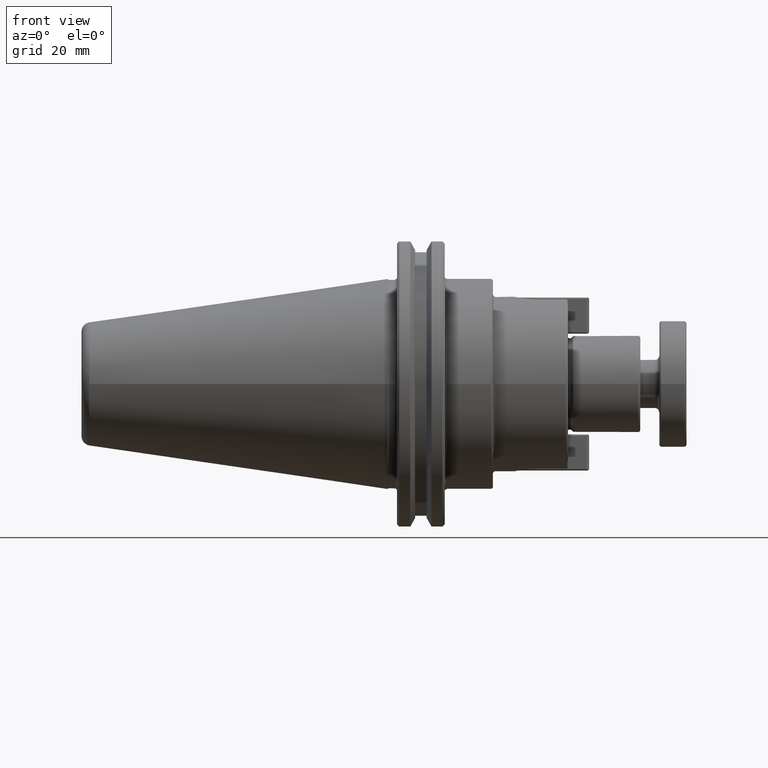
[diagram: clean part render]
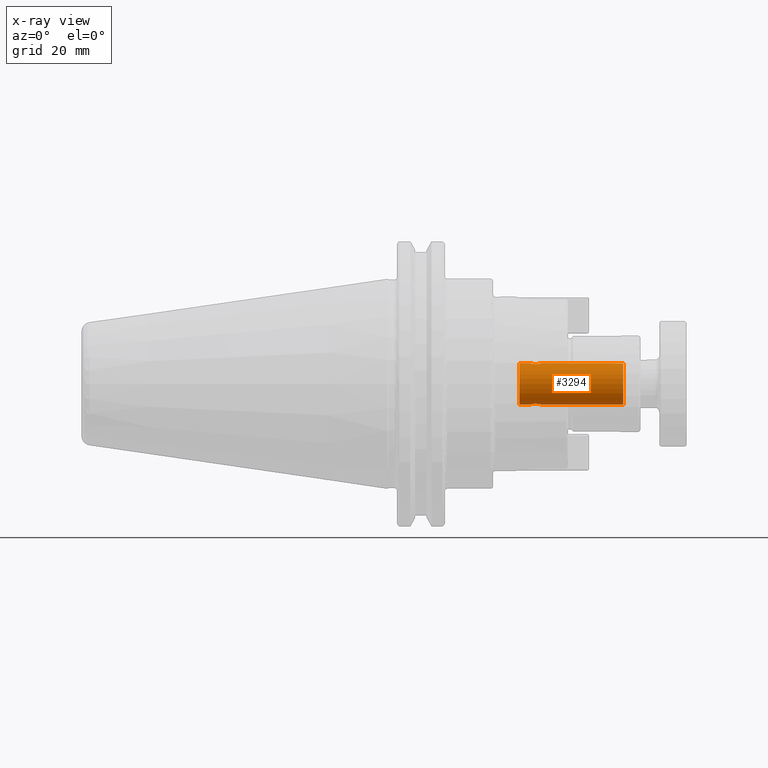
[diagram: x-ray — body ghosted, one internal face saturated and labeled with its STEP entity id]
A machine part, front view, then the same camera in x-ray: the body is ghosted and one INTERNAL B-rep face — a face not visible from any outside direction — is saturated and labeled: STEP entity #3294.
In plain terms, the highlighted cylindrical surface (bore or boss wall) has radius 6.9175 mm, axis along (1, 0, 0).
Its self-contained STEP definition (entity closure, byte-faithful):
#150=B_SPLINE_CURVE_WITH_KNOTS('',3,(#4994,#4995,#4996,#4997,#4998,#4999,
#5000,#5001,#5002,#5003,#5004,#5005,#5006,#5007,#5008,#5009,#5010,#5011,
#5012,#5013,#5014,#5015,#5016,#5017,#5018,#5019),.UNSPECIFIED.,.F.,.F.,
(4,2,2,2,2,2,2,2,2,2,2,2,4),(0.,0.0783920678561666,0.156784135712333,0.235153235671694,
0.313522335631055,0.391891435590416,0.470260535549777,0.548652603405943,
0.62704467126211,0.705436739118277,0.783828806974443,0.862197906933804,
0.940567006893165),.UNSPECIFIED.);
#151=B_SPLINE_CURVE_WITH_KNOTS('',3,(#5020,#5021,#5022,#5023,#5024,#5025,
#5026,#5027,#5028,#5029),.UNSPECIFIED.,.F.,.F.,(4,2,2,2,4),(0.940567006893165,
1.01893610685253,1.09730520681189,1.17569727466805,1.25408934252422),
 .UNSPECIFIED.);
#157=B_SPLINE_CURVE_WITH_KNOTS('',3,(#5169,#5170,#5171,#5172,#5173,#5174,
#5175,#5176,#5177,#5178,#5179,#5180,#5181,#5182,#5183,#5184,#5185,#5186,
#5187,#5188,#5189,#5190,#5191,#5192,#5193,#5194),.UNSPECIFIED.,.F.,.F.,
(4,2,2,2,2,2,2,2,2,2,2,2,4),(0.,0.0783920678561666,0.156784135712333,0.235153235671694,
0.313522335631055,0.391891435590416,0.470260535549777,0.548652603405943,
0.62704467126211,0.705436739118277,0.783828806974443,0.862197906933804,
0.940567006893165),.UNSPECIFIED.);
#158=B_SPLINE_CURVE_WITH_KNOTS('',3,(#5195,#5196,#5197,#5198,#5199,#5200,
#5201,#5202,#5203,#5204),.UNSPECIFIED.,.F.,.F.,(4,2,2,2,4),(0.940567006893165,
1.01893610685253,1.09730520681189,1.17569727466805,1.25408934252422),
 .UNSPECIFIED.);
#208=FACE_BOUND('',#546,.T.);
#209=FACE_BOUND('',#547,.T.);
#349=FACE_OUTER_BOUND('',#545,.T.);
#545=EDGE_LOOP('',(#2378,#2379,#2380,#2381));
#546=EDGE_LOOP('',(#2382,#2383));
#547=EDGE_LOOP('',(#2384,#2385));
#716=CIRCLE('',#3603,0.27234252);
#771=CIRCLE('',#3697,0.27234252);
#900=LINE('',#5322,#1126);
#1126=VECTOR('',#4241,0.27234252);
#1329=VERTEX_POINT('',#4941);
#1342=VERTEX_POINT('',#4991);
#1343=VERTEX_POINT('',#4993);
#1370=VERTEX_POINT('',#5166);
#1371=VERTEX_POINT('',#5168);
#1397=VERTEX_POINT('',#5312);
#1647=EDGE_CURVE('',#1329,#1329,#716,.T.);
#1675=EDGE_CURVE('',#1343,#1342,#150,.T.);
#1676=EDGE_CURVE('',#1342,#1343,#151,.T.);
#1712=EDGE_CURVE('',#1371,#1370,#157,.T.);
#1713=EDGE_CURVE('',#1370,#1371,#158,.T.);
#1756=EDGE_CURVE('',#1397,#1397,#771,.T.);
#1760=EDGE_CURVE('',#1397,#1329,#900,.T.);
#2378=ORIENTED_EDGE('',*,*,#1756,.T.);
#2379=ORIENTED_EDGE('',*,*,#1760,.T.);
#2380=ORIENTED_EDGE('',*,*,#1647,.T.);
#2381=ORIENTED_EDGE('',*,*,#1760,.F.);
#2382=ORIENTED_EDGE('',*,*,#1675,.T.);
#2383=ORIENTED_EDGE('',*,*,#1676,.T.);
#2384=ORIENTED_EDGE('',*,*,#1712,.T.);
#2385=ORIENTED_EDGE('',*,*,#1713,.T.);
#3085=CYLINDRICAL_SURFACE('',#3701,0.27234252);
#3294=ADVANCED_FACE('',(#349,#208,#209),#3085,.F.);
#3603=AXIS2_PLACEMENT_3D('',#4942,#4002,#4003);
#3697=AXIS2_PLACEMENT_3D('',#5314,#4229,#4230);
#3701=AXIS2_PLACEMENT_3D('',#5321,#4239,#4240);
#4002=DIRECTION('center_axis',(-1.,0.,0.));
#4003=DIRECTION('ref_axis',(-1.7859313964704E-16,1.,0.));
#4229=DIRECTION('center_axis',(1.,1.7859313964704E-16,0.));
#4230=DIRECTION('ref_axis',(-1.7859313964704E-16,1.,0.));
#4239=DIRECTION('center_axis',(1.,1.7859313964704E-16,0.));
#4240=DIRECTION('ref_axis',(-1.7859313964704E-16,1.,0.));
#4241=DIRECTION('',(-1.,-1.7859313964704E-16,0.));
#4941=CARTESIAN_POINT('',(1.72508661417323,-0.27234252,3.33523395389724E-17));
#4942=CARTESIAN_POINT('Origin',(1.72508661417323,-1.07696075327104E-16,
0.));
#4991=CARTESIAN_POINT('',(1.85782676940945,-2.398652313538E-17,-0.27234252));
#4993=CARTESIAN_POINT('',(1.93920472440945,0.081377955,-0.259900128203063));
#4994=CARTESIAN_POINT('Ctrl Pts',(1.93920472440945,0.0813779549999999,-0.259900128203063));
#4995=CARTESIAN_POINT('Ctrl Pts',(1.94949239735645,0.0813779549999999,-0.259900128203063));
#4996=CARTESIAN_POINT('Ctrl Pts',(1.96041934484529,0.0793090360499536,-0.260574889914107));
#4997=CARTESIAN_POINT('Ctrl Pts',(1.98044849568742,0.0709854600051345,-0.26296437055769));
#4998=CARTESIAN_POINT('Ctrl Pts',(1.98955666657718,0.0647338654714544,-0.264639568368489));
#4999=CARTESIAN_POINT('Ctrl Pts',(2.00393648301895,0.0503540490296854,-0.267748039244824));
#5000=CARTESIAN_POINT('Ctrl Pts',(2.0101897093242,0.0412450214689631,-0.269389970090798));
#5001=CARTESIAN_POINT('Ctrl Pts',(2.01851448976291,0.0212127585247487,-0.271702275758335));
#5002=CARTESIAN_POINT('Ctrl Pts',(2.02058267940945,0.0102846587873177,-0.27234252));
#5003=CARTESIAN_POINT('Ctrl Pts',(2.02058267940945,-0.0102846587873178,
-0.27234252));
#5004=CARTESIAN_POINT('Ctrl Pts',(2.01851448976291,-0.0212127585247488,
-0.271702275758335));
#5005=CARTESIAN_POINT('Ctrl Pts',(2.0101897093242,-0.0412450214689632,-0.269389970090798));
#5006=CARTESIAN_POINT('Ctrl Pts',(2.00393648301895,-0.0503540490296855,
-0.267748039244824));
#5007=CARTESIAN_POINT('Ctrl Pts',(1.98955666657718,-0.0647338654714545,
-0.264639568368489));
#5008=CARTESIAN_POINT('Ctrl Pts',(1.98044849568742,-0.0709854600051345,
-0.26296437055769));
#5009=CARTESIAN_POINT('Ctrl Pts',(1.96041934484529,-0.0793090360499537,
-0.260574889914107));
#5010=CARTESIAN_POINT('Ctrl Pts',(1.94949239735645,-0.081377955,-0.259900128203063));
#5011=CARTESIAN_POINT('Ctrl Pts',(1.92891705146245,-0.081377955,-0.259900128203063));
#5012=CARTESIAN_POINT('Ctrl Pts',(1.9179901039736,-0.0793090360499537,-0.260574889914107));
#5013=CARTESIAN_POINT('Ctrl Pts',(1.89796095313147,-0.0709854600051345,
-0.26296437055769));
#5014=CARTESIAN_POINT('Ctrl Pts',(1.88885278224172,-0.0647338654714545,
-0.264639568368489));
#5015=CARTESIAN_POINT('Ctrl Pts',(1.87447296579995,-0.0503540490296856,
-0.267748039244824));
#5016=CARTESIAN_POINT('Ctrl Pts',(1.8682197394947,-0.0412450214689634,-0.269389970090798));
#5017=CARTESIAN_POINT('Ctrl Pts',(1.85989495905599,-0.021212758524749,-0.271702275758335));
#5018=CARTESIAN_POINT('Ctrl Pts',(1.85782676940945,-0.0102846587873177,
-0.27234252));
#5019=CARTESIAN_POINT('Ctrl Pts',(1.85782676940945,-8.19554398099279E-18,
-0.27234252));
#5020=CARTESIAN_POINT('Ctrl Pts',(1.85782676940945,-2.45866319429784E-17,
-0.27234252));
#5021=CARTESIAN_POINT('Ctrl Pts',(1.85782676940945,0.0102846587873177,-0.27234252));
#5022=CARTESIAN_POINT('Ctrl Pts',(1.85989495905599,0.0212127585247486,-0.271702275758335));
#5023=CARTESIAN_POINT('Ctrl Pts',(1.8682197394947,0.0412450214689631,-0.269389970090798));
#5024=CARTESIAN_POINT('Ctrl Pts',(1.87447296579995,0.0503540490296855,-0.267748039244823));
#5025=CARTESIAN_POINT('Ctrl Pts',(1.88885278224172,0.0647338654714544,-0.264639568368489));
#5026=CARTESIAN_POINT('Ctrl Pts',(1.89796095313147,0.0709854600051345,-0.26296437055769));
#5027=CARTESIAN_POINT('Ctrl Pts',(1.9179901039736,0.0793090360499536,-0.260574889914107));
#5028=CARTESIAN_POINT('Ctrl Pts',(1.92891705146245,0.081377955,-0.259900128203063));
#5029=CARTESIAN_POINT('Ctrl Pts',(1.93920472440945,0.081377955,-0.259900128203063));
#5166=CARTESIAN_POINT('',(1.85782676940945,-1.38614685850043E-17,0.27234252));
#5168=CARTESIAN_POINT('',(1.93920472440945,-0.081377955,0.259900128203063));
#5169=CARTESIAN_POINT('Ctrl Pts',(1.93920472440945,-0.081377955,0.259900128203063));
#5170=CARTESIAN_POINT('Ctrl Pts',(1.94949239735645,-0.081377955,0.259900128203063));
#5171=CARTESIAN_POINT('Ctrl Pts',(1.96041934484529,-0.0793090360499537,
0.260574889914107));
#5172=CARTESIAN_POINT('Ctrl Pts',(1.98044849568742,-0.0709854600051345,
0.26296437055769));
#5173=CARTESIAN_POINT('Ctrl Pts',(1.98955666657718,-0.0647338654714544,
0.264639568368489));
#5174=CARTESIAN_POINT('Ctrl Pts',(2.00393648301895,-0.0503540490296855,
0.267748039244824));
#5175=CARTESIAN_POINT('Ctrl Pts',(2.0101897093242,-0.0412450214689631,0.269389970090798));
#5176=CARTESIAN_POINT('Ctrl Pts',(2.01851448976291,-0.0212127585247487,
0.271702275758335));
#5177=CARTESIAN_POINT('Ctrl Pts',(2.02058267940945,-0.0102846587873177,
0.27234252));
#5178=CARTESIAN_POINT('Ctrl Pts',(2.02058267940945,0.0102846587873177,0.27234252));
#5179=CARTESIAN_POINT('Ctrl Pts',(2.01851448976291,0.0212127585247487,0.271702275758335));
#5180=CARTESIAN_POINT('Ctrl Pts',(2.0101897093242,0.0412450214689632,0.269389970090798));
#5181=CARTESIAN_POINT('Ctrl Pts',(2.00393648301895,0.0503540490296855,0.267748039244824));
#5182=CARTESIAN_POINT('Ctrl Pts',(1.98955666657718,0.0647338654714544,0.264639568368489));
#5183=CARTESIAN_POINT('Ctrl Pts',(1.98044849568742,0.0709854600051345,0.26296437055769));
#5184=CARTESIAN_POINT('Ctrl Pts',(1.96041934484529,0.0793090360499537,0.260574889914107));
#5185=CARTESIAN_POINT('Ctrl Pts',(1.94949239735645,0.081377955,0.259900128203063));
#5186=CARTESIAN_POINT('Ctrl Pts',(1.92891705146245,0.081377955,0.259900128203063));
#5187=CARTESIAN_POINT('Ctrl Pts',(1.9179901039736,0.0793090360499537,0.260574889914107));
#5188=CARTESIAN_POINT('Ctrl Pts',(1.89796095313147,0.0709854600051345,0.26296437055769));
#5189=CARTESIAN_POINT('Ctrl Pts',(1.88885278224172,0.0647338654714544,0.264639568368489));
#5190=CARTESIAN_POINT('Ctrl Pts',(1.87447296579995,0.0503540490296855,0.267748039244824));
#5191=CARTESIAN_POINT('Ctrl Pts',(1.8682197394947,0.0412450214689634,0.269389970090798));
#5192=CARTESIAN_POINT('Ctrl Pts',(1.85989495905599,0.021212758524749,0.271702275758335));
#5193=CARTESIAN_POINT('Ctrl Pts',(1.85782676940945,0.0102846587873178,0.27234252));
#5194=CARTESIAN_POINT('Ctrl Pts',(1.85782676940945,3.55140239176354E-17,
0.27234252));
#5195=CARTESIAN_POINT('Ctrl Pts',(1.85782676940945,-5.73688078669495E-17,
0.27234252));
#5196=CARTESIAN_POINT('Ctrl Pts',(1.85782676940945,-0.0102846587873178,
0.27234252));
#5197=CARTESIAN_POINT('Ctrl Pts',(1.85989495905599,-0.021212758524749,0.271702275758335));
#5198=CARTESIAN_POINT('Ctrl Pts',(1.8682197394947,-0.0412450214689634,0.269389970090798));
#5199=CARTESIAN_POINT('Ctrl Pts',(1.87447296579995,-0.0503540490296856,
0.267748039244824));
#5200=CARTESIAN_POINT('Ctrl Pts',(1.88885278224172,-0.0647338654714545,
0.264639568368489));
#5201=CARTESIAN_POINT('Ctrl Pts',(1.89796095313147,-0.0709854600051345,
0.26296437055769));
#5202=CARTESIAN_POINT('Ctrl Pts',(1.9179901039736,-0.0793090360499537,0.260574889914107));
#5203=CARTESIAN_POINT('Ctrl Pts',(1.92891705146245,-0.081377955,0.259900128203063));
#5204=CARTESIAN_POINT('Ctrl Pts',(1.93920472440945,-0.081377955,0.259900128203063));
#5312=CARTESIAN_POINT('',(3.08442913417323,-0.27234252,-3.33523395389724E-17));
#5314=CARTESIAN_POINT('Origin',(3.08442913417323,1.35073173175415E-16,0.));
#5321=CARTESIAN_POINT('Origin',(-5.76559381024463,-1.44548021041651E-15,
0.));
#5322=CARTESIAN_POINT('',(-5.76559381024463,-0.272342520000001,-3.33523395389724E-17));